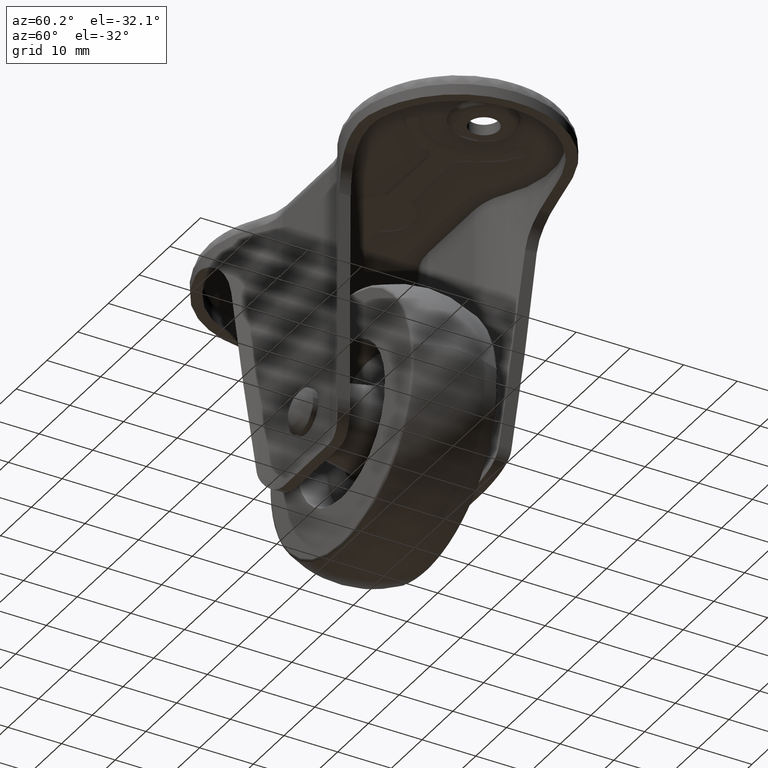
[diagram: clean part render]
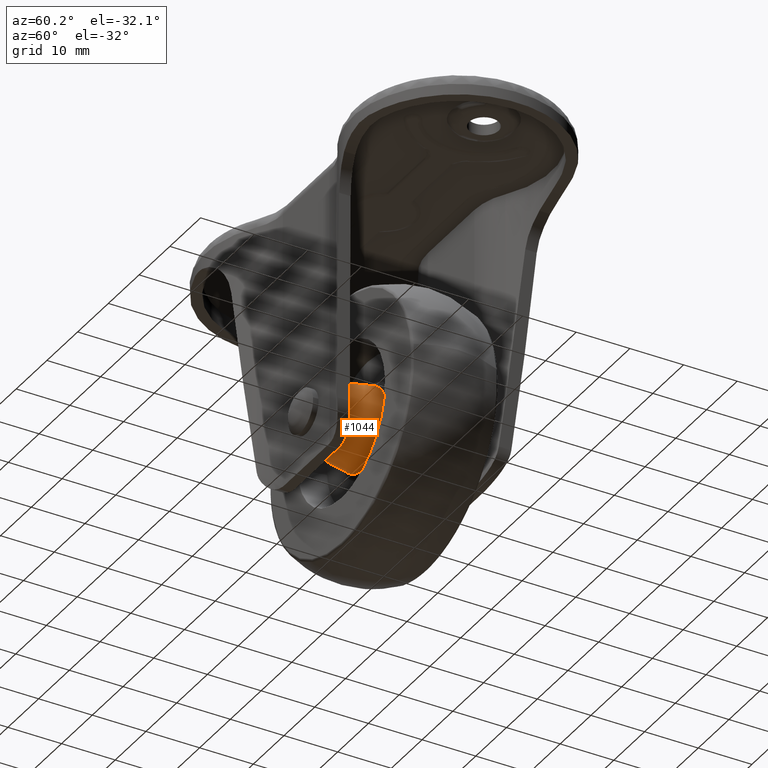
[diagram: same view with one face highlighted and labeled with its STEP entity id]
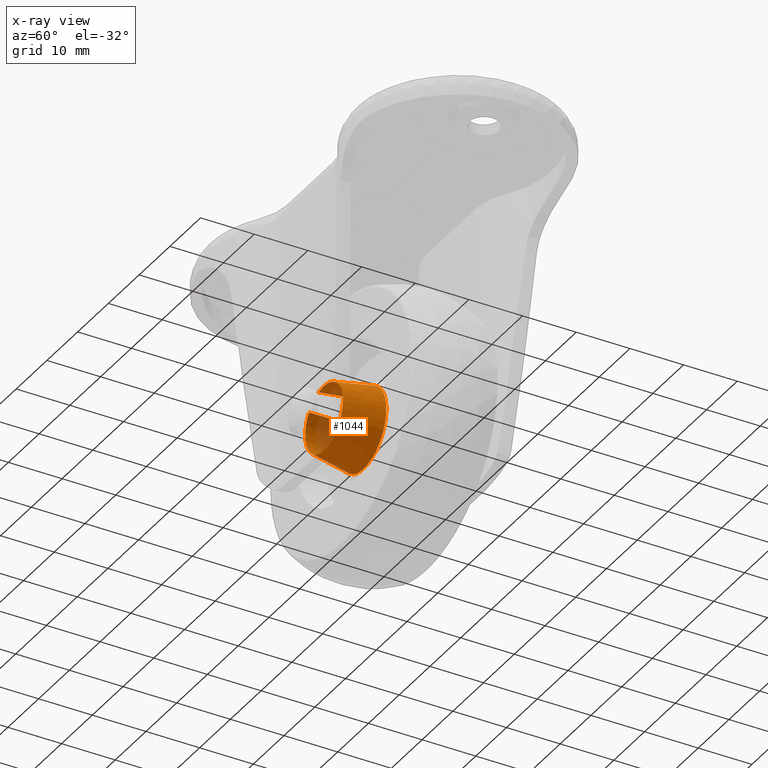
[diagram: x-ray of the same camera — body ghosted, the highlighted face saturated]
A machine part, auxiliary view. The second image highlights one B-rep face of the part: STEP entity #1044.
The next image is the same camera in x-ray: the body ghosted, the highlighted face saturated — about 13% of this face is hidden behind the body in this view.
In plain terms, the highlighted face is a freeform B-spline surface patch.
Its self-contained STEP definition (entity closure, byte-faithful):
#844=CARTESIAN_POINT('',(-1.784448185721787,-11.357330406244790,-39.152913210370201));
#845=CARTESIAN_POINT('',(1.225156291344281,-11.357330406244792,-38.234424492473011));
#846=CARTESIAN_POINT('',(3.721553311173160,-11.357330406244790,-40.149977298497937));
#847=CARTESIAN_POINT('',(8.571576012675223,-11.357330406244790,-43.871530609671105));
#848=CARTESIAN_POINT('',(4.850022701502064,-11.357330406244790,-48.721553311173160));
#849=CARTESIAN_POINT('',(1.128469390328903,-11.357330406244790,-53.571576012675223));
#850=CARTESIAN_POINT('',(-3.721553311173160,-11.357330406244790,-49.850022701502063));
#851=CARTESIAN_POINT('',(-8.571576012675223,-11.357330406244790,-46.128469390328888));
#852=CARTESIAN_POINT('',(-4.850022701502064,-11.357330406244790,-41.278446688826840));
#853=CARTESIAN_POINT('',(-2.181750465564246,-3.638077283807589,-37.851076076322499));
#854=CARTESIAN_POINT('',(1.497933832104048,-3.638077283807589,-36.728088474932910));
#855=CARTESIAN_POINT('',(4.550146501446310,-3.638077283807588,-39.070133629170527));
#856=CARTESIAN_POINT('',(10.480012872275783,-3.638077283807589,-43.620280130616841));
#857=CARTESIAN_POINT('',(5.929866370829472,-3.638077283807588,-49.550146501446307));
#858=CARTESIAN_POINT('',(1.379719869383162,-3.638077283807589,-55.480012872275772));
#859=CARTESIAN_POINT('',(-4.550146501446310,-3.638077283807588,-50.929866370829473));
#860=CARTESIAN_POINT('',(-10.480012872275783,-3.638077283807589,-46.379719869383159));
#861=CARTESIAN_POINT('',(-5.929866370829472,-3.638077283807588,-40.449853498553693));
#869=(BOUNDED_SURFACE()B_SPLINE_SURFACE(2,1,((#844,#853),(#845,#854),(#846,#855),(#847,#856),(#848,#857),(#849,#858),(#850,#859),(#851,#860),(#852,#861)),.UNSPECIFIED.,.F.,.F.,.U.)B_SPLINE_SURFACE_WITH_KNOTS((3,2,2,2,3),(2,2),(0.0,7.430427626477834,19.814473670607558,32.198519714737280,44.582565758866998),(0.0,7.838335141687298),.UNSPECIFIED.)GEOMETRIC_REPRESENTATION_ITEM()RATIONAL_B_SPLINE_SURFACE(((0.859411254969543,0.859411254969543),(0.824264068711928,0.824264068711928),(1.0,1.0),(0.707106781186548,0.707106781186548),(1.0,1.0),(0.707106781186548,0.707106781186548),(1.0,1.0),(0.707106781186548,0.707106781186548),(1.0,1.0)))REPRESENTATION_ITEM('')SURFACE());
#870=CARTESIAN_POINT('',(0.0,-3.826351753015525,-37.558764903166292));
#871=VERTEX_POINT('',#870);
#872=CARTESIAN_POINT('',(-2.172060165948718,-3.826351753008856,-37.882828202026722));
#873=VERTEX_POINT('',#872);
#874=CARTESIAN_POINT('',(0.0,-3.826351753015525,-37.558764903166292));
#875=CARTESIAN_POINT('',(-1.110204602492843,-3.826351753015524,-37.558764903166285));
#876=CARTESIAN_POINT('',(-2.172060165948718,-3.826351753008856,-37.882828202026730));
#884=(BOUNDED_CURVE()B_SPLINE_CURVE(2,(#874,#875,#876),.UNSPECIFIED.,.F.,.U.)B_SPLINE_CURVE_WITH_KNOTS((3,3),(0.0,0.049678747953832),.UNSPECIFIED.)CURVE()GEOMETRIC_REPRESENTATION_ITEM()RATIONAL_B_SPLINE_CURVE((1.0,0.941797726420720,0.906726781477320))REPRESENTATION_ITEM(''));
#885=EDGE_CURVE('',#871,#873,#884,.T.);
#886=ORIENTED_EDGE('',*,*,#885,.T.);
#887=CARTESIAN_POINT('',(-1.793902136472213,-11.173647999998110,-39.121935527230953));
#888=VERTEX_POINT('',#887);
#889=CARTESIAN_POINT('',(-1.793902136472213,-11.173647999998110,-39.121935527230953));
#890=CARTESIAN_POINT('',(-2.172060165948718,-3.826351753008856,-37.882828202026722));
#891=QUASI_UNIFORM_CURVE('',1,(#889,#890),.UNSPECIFIED.,.F.,.U.);
#892=EDGE_CURVE('',#888,#873,#891,.T.);
#893=ORIENTED_EDGE('',*,*,#892,.F.);
#894=CARTESIAN_POINT('',(0.0,-11.173648000000000,-38.854291999999901));
#895=VERTEX_POINT('',#894);
#896=CARTESIAN_POINT('',(-1.793902136472213,-11.173647999998110,-39.121935527230939));
#897=CARTESIAN_POINT('',(-0.916916777689360,-11.173648000000002,-38.854291999999901));
#898=CARTESIAN_POINT('',(0.0,-11.173648000000000,-38.854291999999901));
#906=(BOUNDED_CURVE()B_SPLINE_CURVE(2,(#896,#897,#898),.UNSPECIFIED.,.F.,.U.)B_SPLINE_CURVE_WITH_KNOTS((3,3),(0.950321252047262,1.0),.UNSPECIFIED.)CURVE()GEOMETRIC_REPRESENTATION_ITEM()RATIONAL_B_SPLINE_CURVE((0.906726781478864,0.941797726422001,1.0))REPRESENTATION_ITEM(''));
#907=EDGE_CURVE('',#888,#895,#906,.T.);
#908=ORIENTED_EDGE('',*,*,#907,.T.);
#909=CARTESIAN_POINT('',(6.036850512320900,-11.173647981792341,-43.848409175430419));
#910=VERTEX_POINT('',#909);
#911=CARTESIAN_POINT('',(0.0,-11.173648000000000,-38.854291999999901));
#912=CARTESIAN_POINT('',(5.084171816412962,-11.173647999999998,-38.854291999999894));
#913=CARTESIAN_POINT('',(6.036850512320901,-11.173647981792344,-43.848409175430419));
#921=(BOUNDED_CURVE()B_SPLINE_CURVE(2,(#911,#912,#913),.UNSPECIFIED.,.F.,.U.)B_SPLINE_CURVE_WITH_KNOTS((3,3),(0.0,0.217838633736448),.UNSPECIFIED.)CURVE()GEOMETRIC_REPRESENTATION_ITEM()RATIONAL_B_SPLINE_CURVE((1.0,0.744786165532027,0.934335795153201))REPRESENTATION_ITEM(''));
#922=EDGE_CURVE('',#895,#910,#921,.T.);
#923=ORIENTED_EDGE('',*,*,#922,.T.);
#924=CARTESIAN_POINT('',(2.187572401634744,-11.173647981907241,-50.743191841014792));
#925=VERTEX_POINT('',#924);
#926=CARTESIAN_POINT('',(6.036850512320901,-11.173647981792342,-43.848409175430426));
#927=CARTESIAN_POINT('',(6.145708000000101,-11.173648000000002,-44.419059551623512));
#928=CARTESIAN_POINT('',(6.145708000000099,-11.173648000000000,-45.0));
#929=CARTESIAN_POINT('',(6.145708000000099,-11.173648000000000,-49.235544561671013));
#930=CARTESIAN_POINT('',(2.187572401634744,-11.173647981907243,-50.743191841014792));
#938=(BOUNDED_CURVE()B_SPLINE_CURVE(2,(#926,#927,#928,#929,#930),.UNSPECIFIED.,.F.,.U.)B_SPLINE_CURVE_WITH_KNOTS((3,2,3),(0.217838633736449,0.250000000000000,0.439552769335785),.UNSPECIFIED.)CURVE()GEOMETRIC_REPRESENTATION_ITEM()RATIONAL_B_SPLINE_CURVE((0.934335795153201,0.962320615654520,1.0,0.777925117016952,0.892609506588762))REPRESENTATION_ITEM(''));
#939=EDGE_CURVE('',#910,#925,#938,.T.);
#940=ORIENTED_EDGE('',*,*,#939,.T.);
#941=CARTESIAN_POINT('',(0.0,-11.173648000000000,-51.145708000000099));
#942=VERTEX_POINT('',#941);
#943=CARTESIAN_POINT('',(2.187572401634745,-11.173647981907243,-50.743191841014799));
#944=CARTESIAN_POINT('',(1.130817948461236,-11.173647999999998,-51.145708000000099));
#945=CARTESIAN_POINT('',(0.0,-11.173648000000000,-51.145708000000099));
#953=(BOUNDED_CURVE()B_SPLINE_CURVE(2,(#943,#944,#945),.UNSPECIFIED.,.F.,.U.)B_SPLINE_CURVE_WITH_KNOTS((3,3),(0.439552769335785,0.500000000000000),.UNSPECIFIED.)CURVE()GEOMETRIC_REPRESENTATION_ITEM()RATIONAL_B_SPLINE_CURVE((0.892609506588761,0.929181664169595,1.0))REPRESENTATION_ITEM(''));
#954=EDGE_CURVE('',#925,#942,#953,.T.);
#955=ORIENTED_EDGE('',*,*,#954,.T.);
#956=CARTESIAN_POINT('',(-4.875717970250477,-11.173647999998920,-41.258730015643863));
#957=VERTEX_POINT('',#956);
#958=CARTESIAN_POINT('',(0.0,-11.173648000000000,-51.145708000000099));
#959=CARTESIAN_POINT('',(-6.145708000000099,-11.173648000000000,-51.145708000000099));
#960=CARTESIAN_POINT('',(-6.145708000000099,-11.173648000000000,-45.0));
#961=CARTESIAN_POINT('',(-6.145708000000099,-11.173647999999998,-42.913813245661316));
#962=CARTESIAN_POINT('',(-4.875717970250476,-11.173647999998915,-41.258730015643863));
#970=(BOUNDED_CURVE()B_SPLINE_CURVE(2,(#958,#959,#960,#961,#962),.UNSPECIFIED.,.F.,.U.)B_SPLINE_CURVE_WITH_KNOTS((3,2,3),(0.500000000000000,0.750000000000000,0.855220510393670),.UNSPECIFIED.)CURVE()GEOMETRIC_REPRESENTATION_ITEM()RATIONAL_B_SPLINE_CURVE((1.0,0.707106781186547,1.0,0.876726504102415,0.857220209455677))REPRESENTATION_ITEM(''));
#971=EDGE_CURVE('',#942,#957,#970,.T.);
#972=ORIENTED_EDGE('',*,*,#971,.T.);
#973=CARTESIAN_POINT('',(-5.903528719961464,-3.826351753014499,-40.470063088856243));
#974=VERTEX_POINT('',#973);
#975=CARTESIAN_POINT('',(-4.875717970250477,-11.173647999998920,-41.258730015643863));
#976=CARTESIAN_POINT('',(-5.903528719961464,-3.826351753014499,-40.470063088856243));
#977=QUASI_UNIFORM_CURVE('',1,(#975,#976),.UNSPECIFIED.,.F.,.U.);
#978=EDGE_CURVE('',#957,#974,#977,.T.);
#979=ORIENTED_EDGE('',*,*,#978,.T.);
#980=CARTESIAN_POINT('',(-7.260928949057331,-3.826351750208496,-46.628155573173864));
#981=VERTEX_POINT('',#980);
#982=CARTESIAN_POINT('',(-5.903528719961464,-3.826351753014500,-40.470063088856243));
#983=CARTESIAN_POINT('',(-7.441235096833711,-3.826351753015525,-42.474041055168705));
#984=CARTESIAN_POINT('',(-7.441235096833710,-3.826351753015525,-45.0));
#985=CARTESIAN_POINT('',(-7.441235096833710,-3.826351753015525,-45.824061570584064));
#986=CARTESIAN_POINT('',(-7.260928949057331,-3.826351750208495,-46.628155573173856));
#994=(BOUNDED_CURVE()B_SPLINE_CURVE(2,(#982,#983,#984,#985,#986),.UNSPECIFIED.,.F.,.U.)B_SPLINE_CURVE_WITH_KNOTS((3,2,3),(0.144779489606408,0.250000000000000,0.287436176727867),.UNSPECIFIED.)CURVE()GEOMETRIC_REPRESENTATION_ITEM()RATIONAL_B_SPLINE_CURVE((0.857220209455705,0.876726504102506,1.0,0.956140790792423,0.925416950441161))REPRESENTATION_ITEM(''));
#995=EDGE_CURVE('',#974,#981,#994,.T.);
#996=ORIENTED_EDGE('',*,*,#995,.T.);
#997=CARTESIAN_POINT('',(0.0,-3.826351753015525,-52.441235096833708));
#998=VERTEX_POINT('',#997);
#999=CARTESIAN_POINT('',(-7.260928949057331,-3.826351750208496,-46.628155573173864));
#1000=CARTESIAN_POINT('',(-5.957432124544801,-3.826351753015526,-52.441235096833701));
#1001=CARTESIAN_POINT('',(0.0,-3.826351753015525,-52.441235096833708));
#1009=(BOUNDED_CURVE()B_SPLINE_CURVE(2,(#999,#1000,#1001),.UNSPECIFIED.,.F.,.U.)B_SPLINE_CURVE_WITH_KNOTS((3,3),(0.287436176727867,0.500000000000000),.UNSPECIFIED.)CURVE()GEOMETRIC_REPRESENTATION_ITEM()RATIONAL_B_SPLINE_CURVE((0.925416950441161,0.750965990394124,1.0))REPRESENTATION_ITEM(''));
#1010=EDGE_CURVE('',#981,#998,#1009,.T.);
#1011=ORIENTED_EDGE('',*,*,#1010,.T.);
#1012=CARTESIAN_POINT('',(7.342162078032208,-3.826351750378990,-43.789778618113907));
#1013=VERTEX_POINT('',#1012);
#1014=CARTESIAN_POINT('',(0.0,-3.826351753015525,-52.441235096833708));
#1015=CARTESIAN_POINT('',(7.441235096833712,-3.826351753015525,-52.441235096833708));
#1016=CARTESIAN_POINT('',(7.441235096833710,-3.826351753015525,-45.0));
#1017=CARTESIAN_POINT('',(7.441235096833710,-3.826351753015525,-44.390834074477304));
#1018=CARTESIAN_POINT('',(7.342162078032208,-3.826351750378990,-43.789778618113921));
#1026=(BOUNDED_CURVE()B_SPLINE_CURVE(2,(#1014,#1015,#1016,#1017,#1018),.UNSPECIFIED.,.F.,.U.)B_SPLINE_CURVE_WITH_KNOTS((3,2,3),(0.500000000000000,0.750000000000000,0.777993891205626),.UNSPECIFIED.)CURVE()GEOMETRIC_REPRESENTATION_ITEM()RATIONAL_B_SPLINE_CURVE((1.0,0.707106781186547,1.0,0.967203116390683,0.941751131914508))REPRESENTATION_ITEM(''));
#1027=EDGE_CURVE('',#998,#1013,#1026,.T.);
#1028=ORIENTED_EDGE('',*,*,#1027,.T.);
#1029=CARTESIAN_POINT('',(7.342162078032209,-3.826351750378991,-43.789778618113914));
#1030=CARTESIAN_POINT('',(6.315093218384096,-3.826351753015524,-37.558764903166285));
#1031=CARTESIAN_POINT('',(0.0,-3.826351753015525,-37.558764903166292));
#1039=(BOUNDED_CURVE()B_SPLINE_CURVE(2,(#1029,#1030,#1031),.UNSPECIFIED.,.F.,.U.)B_SPLINE_CURVE_WITH_KNOTS((3,3),(0.777993891205625,1.0),.UNSPECIFIED.)CURVE()GEOMETRIC_REPRESENTATION_ITEM()RATIONAL_B_SPLINE_CURVE((0.941751131914509,0.739903664795864,1.0))REPRESENTATION_ITEM(''));
#1040=EDGE_CURVE('',#1013,#871,#1039,.T.);
#1041=ORIENTED_EDGE('',*,*,#1040,.T.);
#1042=EDGE_LOOP('',(#886,#893,#908,#923,#940,#955,#972,#979,#996,#1011,#1028,#1041));
#1043=FACE_OUTER_BOUND('',#1042,.T.);
#1044=ADVANCED_FACE('',(#1043),#869,.T.);